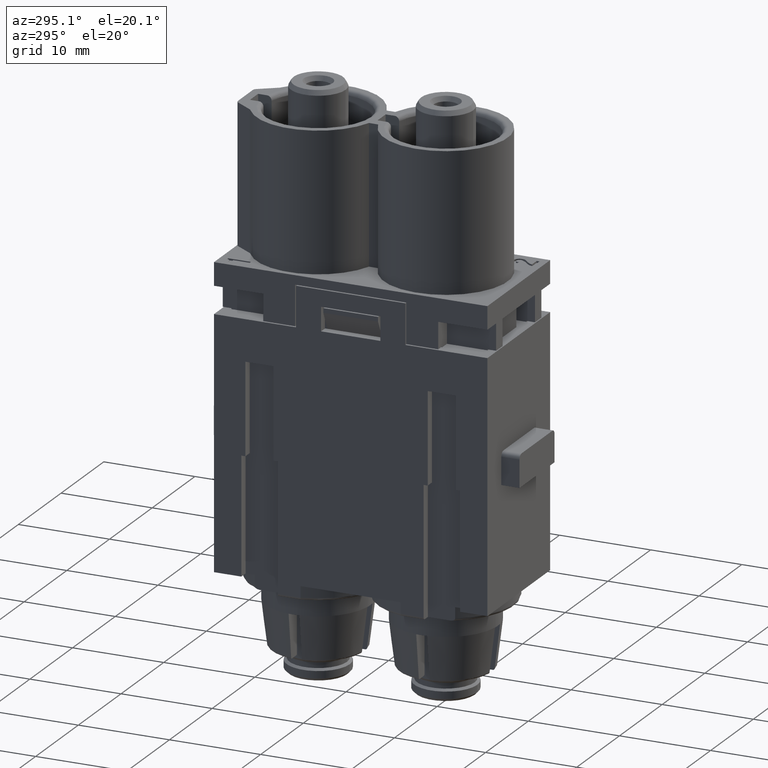
[diagram: clean part render]
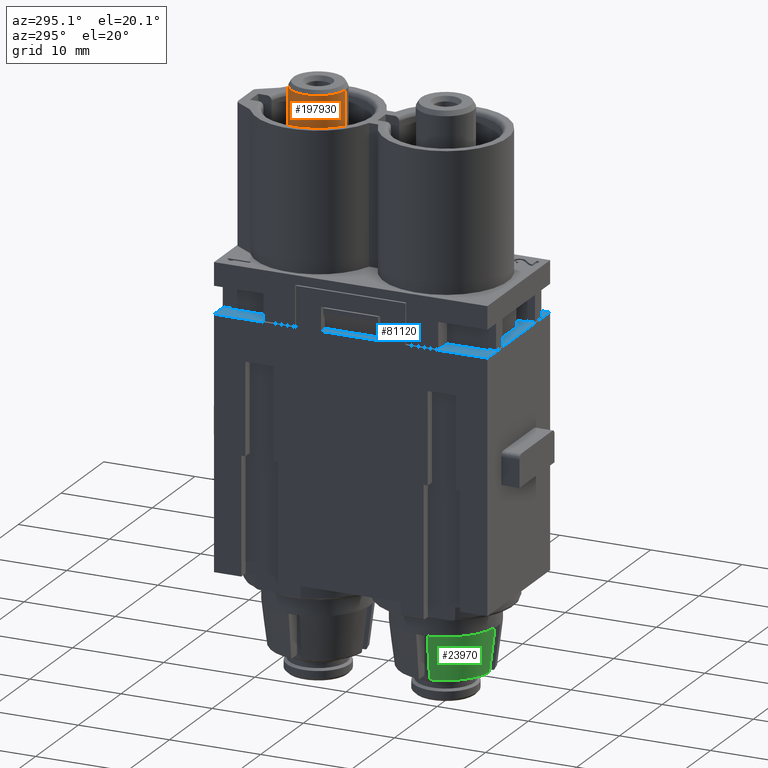
[diagram: same view with three faces highlighted in distinct colors, each labeled with its STEP entity id]
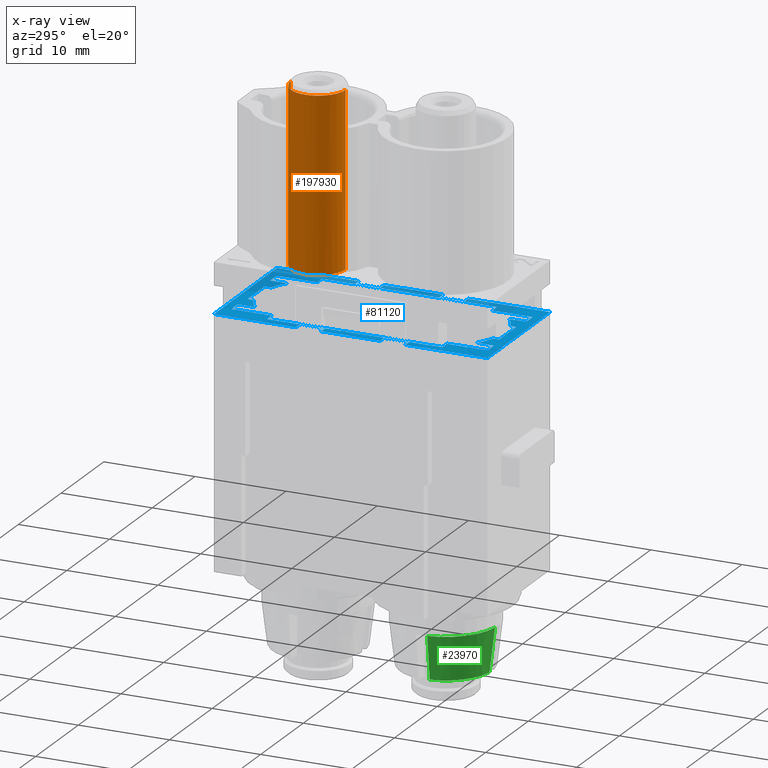
[diagram: x-ray of the same camera — body ghosted, the three highlighted faces saturated]
A machine part, auxiliary view with three faces highlighted in distinct colors.
The next image is the same camera in x-ray (body ghosted, the three faces saturated) — at least one of them is partly hidden behind the body in this view.
Their STEP definitions:

[orange] entity #197930 — the highlighted cylindrical surface (edge-blend (fillet) strip) has radius 3 mm, axis along (0, -0, -1).
#76360=CARTESIAN_POINT('',(66.6468229999995,73.9545149999995,
-16.2999999999997));
#76370=DIRECTION('',(2.58844984525645E-31,-9.86076131526265E-32,-1.));
#76380=DIRECTION('',(2.42232056741089E-44,1.,-9.86076131526265E-32));
#76390=AXIS2_PLACEMENT_3D('',#76360,#76370,#76380);
#76400=CIRCLE('',#76390,3.00000000000001);
#76410=CARTESIAN_POINT('',(66.6468229999995,76.9545149999995,
-16.2999999999997));
#76420=VERTEX_POINT('',#76410);
#76430=CARTESIAN_POINT('',(66.6468229999995,70.9545149999995,
-16.2999999999997));
#76440=VERTEX_POINT('',#76430);
#76470=CARTESIAN_POINT('',(63.6468229999992,73.9545149999996,
-16.2999999999998));
#76480=VERTEX_POINT('',#76470);
#76490=EDGE_CURVE('',#76480,#76420,#76400,.T.);
#76510=EDGE_CURVE('',#76440,#76480,#76400,.T.);
#158440=CARTESIAN_POINT('',(66.6468229999995,76.9545149999995,
2.70000000000028));
#158450=VERTEX_POINT('',#158440);
#158480=CARTESIAN_POINT('',(66.6468229999995,73.9545149999995,
2.70000000000028));
#158490=DIRECTION('',(2.58844984525645E-31,-9.86076131526265E-32,-1.));
#158500=DIRECTION('',(2.37310171513627E-15,-1.,2.95822839457879E-31));
#158510=AXIS2_PLACEMENT_3D('',#158480,#158490,#158500);
#158520=CIRCLE('',#158510,3.);
#158530=CARTESIAN_POINT('',(66.6468229999995,70.9545149999995,
2.70000000000027));
#158540=VERTEX_POINT('',#158530);
#159390=CARTESIAN_POINT('',(66.6468229999995,76.9545149999995,
-8.19999999999974));
#159400=DIRECTION('',(2.58844984525645E-31,-9.86076131526265E-32,-1.));
#159410=VECTOR('',#159400,1.);
#159420=LINE('',#159390,#159410);
#159430=EDGE_CURVE('',#158450,#76420,#159420,.T.);
#159460=CARTESIAN_POINT('',(66.6468229999995,70.9545149999995,
-8.19999999999974));
#159470=DIRECTION('',(2.58844984525645E-31,-9.86076131526265E-32,-1.));
#159480=VECTOR('',#159470,1.);
#159490=LINE('',#159460,#159480);
#159500=EDGE_CURVE('',#158540,#76440,#159490,.T.);
#195130=EDGE_CURVE('',#158540,#158450,#158520,.T.);
#197810=CARTESIAN_POINT('',(66.6468229999995,73.9545149999995,
-8.19999999999974));
#197820=DIRECTION('',(2.58844984525645E-31,-9.86076131526265E-32,-1.));
#197830=DIRECTION('',(2.42232056741089E-44,1.,-2.95822839457879E-31));
#197840=AXIS2_PLACEMENT_3D('',#197810,#197820,#197830);
#197850=CYLINDRICAL_SURFACE('',#197840,3.00000000000001);
#197860=ORIENTED_EDGE('',*,*,#76490,.F.);
#197870=ORIENTED_EDGE('',*,*,#159430,.T.);
#197880=ORIENTED_EDGE('',*,*,#195130,.T.);
#197890=ORIENTED_EDGE('',*,*,#159500,.F.);
#197900=ORIENTED_EDGE('',*,*,#76510,.F.);
#197910=EDGE_LOOP('',(#197900,#197890,#197880,#197870,#197860));
#197920=FACE_OUTER_BOUND('',#197910,.T.);
#197930=ADVANCED_FACE('',(#197920),#197850,.T.);

[blue] entity #81120 — the highlighted planar face has unit normal (0, -0, 1).
#2270=CARTESIAN_POINT('',(73.9968229999995,60.9545149999999,
-20.2999999999993));
#2280=VERTEX_POINT('',#2270);
#2430=CARTESIAN_POINT('',(73.9968229999995,72.9545149999989,
-20.2999999999991));
#2440=VERTEX_POINT('',#2430);
#2470=CARTESIAN_POINT('',(73.9968229999995,56.6045150000001,
-20.2999999999991));
#2480=DIRECTION('',(-1.19020386466133E-15,-1.,-7.00114053383648E-30));
#2490=VECTOR('',#2480,1.);
#2500=LINE('',#2470,#2490);
#2510=CARTESIAN_POINT('',(73.9968229999995,81.9545149999989,
-20.2999999999989));
#2520=VERTEX_POINT('',#2510);
#2530=EDGE_CURVE('',#2520,#2440,#2500,.T.);
#3310=CARTESIAN_POINT('',(73.9968229999995,51.9545149999989,
-20.2999999999995));
#3320=VERTEX_POINT('',#3310);
#3350=CARTESIAN_POINT('',(73.9968229999995,56.6045150000001,
-20.2999999999994));
#3360=DIRECTION('',(1.19020386466122E-15,1.,1.74489636972507E-14));
#3370=VECTOR('',#3360,1.);
#3380=LINE('',#3350,#3370);
#3390=EDGE_CURVE('',#3320,#2280,#3380,.T.);
#4590=CARTESIAN_POINT('',(73.9968229999995,63.7045149999989,
-20.2999999999992));
#4600=VERTEX_POINT('',#4590);
#4630=CARTESIAN_POINT('',(73.9968229999997,77.3045149999992,
-20.299999999999));
#4640=DIRECTION('',(1.98897677757607E-16,-1.,-1.74489636972507E-14));
#4650=VECTOR('',#4640,1.);
#4660=LINE('',#4630,#4650);
#4670=CARTESIAN_POINT('',(73.9968229999995,70.2045149999989,
-20.2999999999991));
#4680=VERTEX_POINT('',#4670);
#4690=EDGE_CURVE('',#4680,#4600,#4660,.T.);
#6500=CARTESIAN_POINT('',(73.0468229999997,69.9545149999994,
-20.2999999999991));
#6510=VERTEX_POINT('',#6500);
#7840=CARTESIAN_POINT('',(73.0468229999997,63.9545149999994,
-20.2999999999992));
#7850=VERTEX_POINT('',#7840);
#8330=CARTESIAN_POINT('',(61.346823,81.0045149999989,-20.2999999999989))
;
#8340=VERTEX_POINT('',#8330);
#8650=CARTESIAN_POINT('',(61.346823,76.5545149999994,-20.299999999999));
#8660=VERTEX_POINT('',#8650);
#8690=CARTESIAN_POINT('',(61.346823,56.6045150000001,-20.2999999999994))
;
#8700=DIRECTION('',(-2.42232056741089E-44,-1.,-1.74489636972507E-14));
#8710=VECTOR('',#8700,1.);
#8720=LINE('',#8690,#8710);
#8730=EDGE_CURVE('',#8340,#8660,#8720,.T.);
#11640=CARTESIAN_POINT('',(59.2968229999997,56.6045150000001,
-20.2999999999994));
#11650=DIRECTION('',(1.98897677757613E-16,-1.,1.18329135783152E-30));
#11660=VECTOR('',#11650,1.);
#11670=LINE('',#11640,#11660);
#11680=CARTESIAN_POINT('',(59.2968229999997,60.9545149999989,
-20.2999999999993));
#11690=VERTEX_POINT('',#11680);
#11700=CARTESIAN_POINT('',(59.2968229999997,51.9545149999989,
-20.2999999999994));
#11710=VERTEX_POINT('',#11700);
#11720=EDGE_CURVE('',#11690,#11710,#11670,.T.);
#13540=CARTESIAN_POINT('',(59.2968229999996,81.9545149999989,
-20.2999999999989));
#13550=VERTEX_POINT('',#13540);
#13580=CARTESIAN_POINT('',(59.2968229999997,56.6045150000001,
-20.2999999999992));
#13590=DIRECTION('',(1.98897677757613E-16,-1.,1.18329135783152E-30));
#13600=VECTOR('',#13590,1.);
#13610=LINE('',#13580,#13600);
#13620=CARTESIAN_POINT('',(59.2968229999997,72.9545149999989,
-20.2999999999991));
#13630=VERTEX_POINT('',#13620);
#13640=EDGE_CURVE('',#13550,#13630,#13610,.T.);
#13950=CARTESIAN_POINT('',(59.2968229999996,70.2045149999989,
-20.2999999999991));
#13960=VERTEX_POINT('',#13950);
#13990=CARTESIAN_POINT('',(59.2968229999996,77.3045149999992,
-20.299999999999));
#14000=DIRECTION('',(-1.98897677757607E-16,1.,1.74489636972507E-14));
#14010=VECTOR('',#14000,1.);
#14020=LINE('',#13990,#14010);
#14030=CARTESIAN_POINT('',(59.2968229999997,63.7045149999989,
-20.2999999999992));
#14040=VERTEX_POINT('',#14030);
#14050=EDGE_CURVE('',#14040,#13960,#14020,.T.);
#18350=CARTESIAN_POINT('',(62.8468229999991,56.6045150000001,
-20.2999999999994));
#18360=DIRECTION('',(1.57772181044205E-30,1.,1.74489636972507E-14));
#18370=VECTOR('',#18360,1.);
#18380=LINE('',#18350,#18370);
#18390=CARTESIAN_POINT('',(62.8468229999991,79.1433052423885,
-20.3000000000001));
#18400=VERTEX_POINT('',#18390);
#18410=CARTESIAN_POINT('',(62.8468229999991,81.0045149999989,
-20.299999999999));
#18420=VERTEX_POINT('',#18410);
#18430=EDGE_CURVE('',#18400,#18420,#18380,.T.);
#22170=CARTESIAN_POINT('',(61.346823,52.9045149999989,-20.2999999999994)
);
#22180=VERTEX_POINT('',#22170);
#22210=CARTESIAN_POINT('',(61.346823,56.6045150000001,-20.2999999999994)
);
#22220=DIRECTION('',(-2.42232056741089E-44,-1.,-1.74489636972507E-14));
#22230=VECTOR('',#22220,1.);
#22240=LINE('',#22210,#22230);
#22250=CARTESIAN_POINT('',(61.346823,57.3545149999994,-20.2999999999994)
);
#22260=VERTEX_POINT('',#22250);
#22270=EDGE_CURVE('',#22260,#22180,#22240,.T.);
#24180=CARTESIAN_POINT('',(72.446823,81.9545149999989,-20.2999999999989)
);
#24190=DIRECTION('',(-1.,9.73145882576852E-16,9.86076131526265E-32));
#24200=VECTOR('',#24190,1.);
#24210=LINE('',#24180,#24200);
#24220=EDGE_CURVE('',#2520,#13550,#24210,.T.);
#29230=CARTESIAN_POINT('',(72.446823,76.5545149999994,-20.299999999999))
;
#29240=DIRECTION('',(-1.,-1.21150368566528E-15,2.22044604924997E-16));
#29250=VECTOR('',#29240,1.);
#29260=LINE('',#29230,#29250);
#29270=CARTESIAN_POINT('',(73.0468229999996,76.5545149999994,
-20.2999999999991));
#29280=VERTEX_POINT('',#29270);
#29290=CARTESIAN_POINT('',(71.946823,76.5545149999994,-20.299999999999))
;
#29300=VERTEX_POINT('',#29290);
#29310=EDGE_CURVE('',#29280,#29300,#29260,.T.);
#30330=CARTESIAN_POINT('',(71.946823,56.6045150000001,-20.2999999999994)
);
#30340=DIRECTION('',(3.67394039744205E-16,1.,1.74489636972507E-14));
#30350=VECTOR('',#30340,1.);
#30360=LINE('',#30330,#30350);
#30370=CARTESIAN_POINT('',(71.946823,52.9045149999989,-20.2999999999994)
);
#30380=VERTEX_POINT('',#30370);
#30390=CARTESIAN_POINT('',(71.946823,57.3545149999994,-20.2999999999994)
);
#30400=VERTEX_POINT('',#30390);
#30410=EDGE_CURVE('',#30380,#30400,#30360,.T.);
#35720=CARTESIAN_POINT('',(60.2468229999994,69.9545149999994,
-20.2999999999991));
#35730=VERTEX_POINT('',#35720);
#39700=CARTESIAN_POINT('',(60.2468229999995,63.9545149999993,
-20.2999999999992));
#39710=VERTEX_POINT('',#39700);
#60920=CARTESIAN_POINT('',(72.446823,57.3545149999994,-20.2999999999994)
);
#60930=DIRECTION('',(1.,6.05751842832639E-16,-2.22044604925008E-16));
#60940=VECTOR('',#60930,1.);
#60950=LINE('',#60920,#60940);
#60960=CARTESIAN_POINT('',(60.2468229999996,57.3545149999994,
-20.2999999999994));
#60970=VERTEX_POINT('',#60960);
#60980=EDGE_CURVE('',#60970,#22260,#60950,.T.);
#62090=CARTESIAN_POINT('',(70.4468229999991,81.0045149999989,
-20.2999999999989));
#62100=VERTEX_POINT('',#62090);
#62430=CARTESIAN_POINT('',(70.4468229999991,79.1433052423891,
-20.2999999999999));
#62440=VERTEX_POINT('',#62430);
#62470=CARTESIAN_POINT('',(70.4468229999991,56.6045150000001,
-20.2999999999994));
#62480=DIRECTION('',(-1.57772181044205E-30,-1.,-1.74489636972507E-14));
#62490=VECTOR('',#62480,1.);
#62500=LINE('',#62470,#62490);
#62510=EDGE_CURVE('',#62100,#62440,#62500,.T.);
#67700=CARTESIAN_POINT('',(73.0468229999996,57.3545149999994,
-20.2999999999993));
#67710=VERTEX_POINT('',#67700);
#67740=CARTESIAN_POINT('',(72.446823,57.3545149999994,-20.2999999999994)
);
#67750=DIRECTION('',(1.,1.21150368566528E-15,-2.22044604924997E-16));
#67760=VECTOR('',#67750,1.);
#67770=LINE('',#67740,#67760);
#67780=EDGE_CURVE('',#30400,#67710,#67770,.T.);
#69400=CARTESIAN_POINT('',(73.0468229999996,56.6045150000001,
-20.2999999999994));
#69410=DIRECTION('',(9.09428748338268E-15,1.,1.74489636972507E-14));
#69420=VECTOR('',#69410,1.);
#69430=LINE('',#69400,#69420);
#69440=EDGE_CURVE('',#7850,#6510,#69430,.T.);
#70650=CARTESIAN_POINT('',(73.0468229999996,76.5545149999994,
-20.2999999999991));
#70660=DIRECTION('',(-1.19020386466133E-15,-1.,-6.97648863054832E-30));
#70670=VECTOR('',#70660,1.);
#70680=LINE('',#70650,#70670);
#70690=EDGE_CURVE('',#29280,#6510,#70680,.T.);
#70740=CARTESIAN_POINT('',(73.0468229999995,56.6045150000001,
-20.2999999999994));
#70750=DIRECTION('',(-2.42232056741089E-44,-1.,-1.74489636972507E-14));
#70760=VECTOR('',#70750,1.);
#70770=LINE('',#70740,#70760);
#70780=EDGE_CURVE('',#7850,#67710,#70770,.T.);
#71700=CARTESIAN_POINT('',(60.2468229999996,56.6045150000001,
-20.2999999999994));
#71710=DIRECTION('',(1.14268350554931E-14,-1.,-1.74489636972507E-14));
#71720=VECTOR('',#71710,1.);
#71730=LINE('',#71700,#71720);
#71740=EDGE_CURVE('',#35730,#39710,#71730,.T.);
#78560=CARTESIAN_POINT('',(73.5436232275759,79.2545149999992,
-20.299999999999));
#78570=DIRECTION('',(2.22044604925018E-16,-1.74489636972507E-14,1.));
#78580=DIRECTION('',(1.,0.,-2.22044604925018E-16));
#78590=AXIS2_PLACEMENT_3D('',#78560,#78570,#78580);
#78600=PLANE('',#78590);
#78610=ORIENTED_EDGE('',*,*,#2530,.F.);
#78620=CARTESIAN_POINT('',(72.446823,72.9545149999989,-20.2999999999991)
);
#78630=DIRECTION('',(-1.,1.19020386466133E-15,2.22044604925039E-16));
#78640=VECTOR('',#78630,1.);
#78650=LINE('',#78620,#78640);
#78660=CARTESIAN_POINT('',(73.0904234551523,72.9545149999989,
-20.2999999999992));
#78670=VERTEX_POINT('',#78660);
#78680=EDGE_CURVE('',#2440,#78670,#78650,.T.);
#78690=ORIENTED_EDGE('',*,*,#78680,.F.);
#78700=CARTESIAN_POINT('',(73.0904234551523,56.6045150000001,
-20.2999999999994));
#78710=DIRECTION('',(-6.05945613331839E-16,-1.,-1.74489636972507E-14));
#78720=VECTOR('',#78710,1.);
#78730=LINE('',#78700,#78720);
#78740=CARTESIAN_POINT('',(73.0904234551523,70.2045149999989,
-20.2999999999991));
#78750=VERTEX_POINT('',#78740);
#78760=EDGE_CURVE('',#78670,#78750,#78730,.T.);
#78770=ORIENTED_EDGE('',*,*,#78760,.F.);
#78780=CARTESIAN_POINT('',(60.8468229999989,70.2045149999989,
-20.2999999999991));
#78790=DIRECTION('',(1.,-6.05751842832642E-16,-2.22044604925029E-16));
#78800=VECTOR('',#78790,1.);
#78810=LINE('',#78780,#78800);
#78820=EDGE_CURVE('',#78750,#4680,#78810,.T.);
#78830=ORIENTED_EDGE('',*,*,#78820,.F.);
#78840=ORIENTED_EDGE('',*,*,#4690,.F.);
#78850=CARTESIAN_POINT('',(60.8468229999989,63.7045149999989,
-20.2999999999992));
#78860=DIRECTION('',(-1.,6.05751842832642E-16,2.22044604925029E-16));
#78870=VECTOR('',#78860,1.);
#78880=LINE('',#78850,#78870);
#78890=CARTESIAN_POINT('',(73.0904234551523,63.7045149999989,
-20.2999999999992));
#78900=VERTEX_POINT('',#78890);
#78910=EDGE_CURVE('',#4600,#78900,#78880,.T.);
#78920=ORIENTED_EDGE('',*,*,#78910,.F.);
#78930=CARTESIAN_POINT('',(73.0904234551523,60.9545149999999,
-20.2999999999993));
#78940=VERTEX_POINT('',#78930);
#78950=EDGE_CURVE('',#78900,#78940,#78730,.T.);
#78960=ORIENTED_EDGE('',*,*,#78950,.F.);
#78970=CARTESIAN_POINT('',(72.446823,60.9545149999999,-20.2999999999993)
);
#78980=DIRECTION('',(-1.,1.98897677757508E-16,-5.87502177453421E-15));
#78990=VECTOR('',#78980,1.);
#79000=LINE('',#78970,#78990);
#79010=EDGE_CURVE('',#2280,#78940,#79000,.T.);
#79020=ORIENTED_EDGE('',*,*,#79010,.T.);
#79030=ORIENTED_EDGE('',*,*,#3390,.T.);
#79040=CARTESIAN_POINT('',(72.446823,51.9545149999989,-20.2999999999995)
);
#79050=DIRECTION('',(-1.,9.73145882576852E-16,9.86076131526265E-32));
#79060=VECTOR('',#79050,1.);
#79070=LINE('',#79040,#79060);
#79080=EDGE_CURVE('',#3320,#11710,#79070,.T.);
#79090=ORIENTED_EDGE('',*,*,#79080,.F.);
#79100=ORIENTED_EDGE('',*,*,#11720,.T.);
#79110=CARTESIAN_POINT('',(72.446823,60.9545149999989,-20.2999999999993)
);
#79120=DIRECTION('',(1.,-9.73145882576954E-16,5.87502177453421E-15));
#79130=VECTOR('',#79120,1.);
#79140=LINE('',#79110,#79130);
#79150=CARTESIAN_POINT('',(60.203222544847,60.9545149999999,
-20.2999999999994));
#79160=VERTEX_POINT('',#79150);
#79170=EDGE_CURVE('',#11690,#79160,#79140,.T.);
#79180=ORIENTED_EDGE('',*,*,#79170,.F.);
#79190=CARTESIAN_POINT('',(60.203222544847,56.6045150000001,
-20.2999999999994));
#79200=DIRECTION('',(-1.93770499197402E-19,1.,1.74489636972507E-14));
#79210=VECTOR('',#79200,1.);
#79220=LINE('',#79190,#79210);
#79230=CARTESIAN_POINT('',(60.203222544847,63.7045149999989,
-20.2999999999992));
#79240=VERTEX_POINT('',#79230);
#79250=EDGE_CURVE('',#79160,#79240,#79220,.T.);
#79260=ORIENTED_EDGE('',*,*,#79250,.F.);
#79270=CARTESIAN_POINT('',(60.8468229999989,63.7045149999989,
-20.2999999999992));
#79280=DIRECTION('',(1.,1.1632769413005E-30,-2.22044604925019E-16));
#79290=VECTOR('',#79280,1.);
#79300=LINE('',#79270,#79290);
#79310=EDGE_CURVE('',#14040,#79240,#79300,.T.);
#79320=ORIENTED_EDGE('',*,*,#79310,.T.);
#79330=ORIENTED_EDGE('',*,*,#14050,.F.);
#79340=CARTESIAN_POINT('',(60.8468229999989,70.2045149999989,
-20.2999999999991));
#79350=DIRECTION('',(-1.,-1.1632769413005E-30,2.22044604925019E-16));
#79360=VECTOR('',#79350,1.);
#79370=LINE('',#79340,#79360);
#79380=CARTESIAN_POINT('',(60.203222544847,70.2045149999989,
-20.2999999999991));
#79390=VERTEX_POINT('',#79380);
#79400=EDGE_CURVE('',#79390,#13960,#79370,.T.);
#79410=ORIENTED_EDGE('',*,*,#79400,.T.);
#79420=CARTESIAN_POINT('',(60.203222544847,72.9545149999989,
-20.2999999999991));
#79430=VERTEX_POINT('',#79420);
#79440=EDGE_CURVE('',#79390,#79430,#79220,.T.);
#79450=ORIENTED_EDGE('',*,*,#79440,.F.);
#79460=CARTESIAN_POINT('',(72.446823,72.9545149999989,-20.2999999999991)
);
#79470=DIRECTION('',(1.,-1.19020386466133E-15,-2.22044604925039E-16));
#79480=VECTOR('',#79470,1.);
#79490=LINE('',#79460,#79480);
#79500=EDGE_CURVE('',#13630,#79430,#79490,.T.);
#79510=ORIENTED_EDGE('',*,*,#79500,.T.);
#79520=ORIENTED_EDGE('',*,*,#13640,.T.);
#79530=ORIENTED_EDGE('',*,*,#24220,.T.);
#79540=EDGE_LOOP('',(#79530,#79520,#79510,#79450,#79410,#79330,#79320,
#79260,#79180,#79100,#79090,#79030,#79020,#78960,#78920,#78840,#78830,
#78770,#78690,#78610));
#79550=FACE_OUTER_BOUND('',#79540,.T.);
#79560=ORIENTED_EDGE('',*,*,#8730,.F.);
#79570=CARTESIAN_POINT('',(72.446823,76.5545149999994,-20.299999999999))
;
#79580=DIRECTION('',(-1.,-6.05751842832639E-16,2.22044604925008E-16));
#79590=VECTOR('',#79580,1.);
#79600=LINE('',#79570,#79590);
#79610=CARTESIAN_POINT('',(60.2468229999996,76.5545149999994,
-20.299999999999));
#79620=VERTEX_POINT('',#79610);
#79630=EDGE_CURVE('',#8660,#79620,#79600,.T.);
#79640=ORIENTED_EDGE('',*,*,#79630,.F.);
#79650=CARTESIAN_POINT('',(60.2468229999996,76.5545149999994,
-20.2999999999992));
#79660=DIRECTION('',(-1.19020386466133E-15,-1.,-6.97648863054832E-30));
#79670=VECTOR('',#79660,1.);
#79680=LINE('',#79650,#79670);
#79690=EDGE_CURVE('',#79620,#35730,#79680,.T.);
#79700=ORIENTED_EDGE('',*,*,#79690,.F.);
#79710=ORIENTED_EDGE('',*,*,#71740,.F.);
#79720=CARTESIAN_POINT('',(60.2468229999995,56.6045150000001,
-20.2999999999994));
#79730=DIRECTION('',(4.89858719658941E-16,1.,1.74489636972507E-14));
#79740=VECTOR('',#79730,1.);
#79750=LINE('',#79720,#79740);
#79760=EDGE_CURVE('',#60970,#39710,#79750,.T.);
#79770=ORIENTED_EDGE('',*,*,#79760,.T.);
#79780=ORIENTED_EDGE('',*,*,#60980,.F.);
#79790=ORIENTED_EDGE('',*,*,#22270,.F.);
#79800=CARTESIAN_POINT('',(62.8468229999991,52.9045149999989,
-20.2999999999994));
#79810=DIRECTION('',(-1.,9.73145882576852E-16,0.));
#79820=VECTOR('',#79810,1.);
#79830=LINE('',#79800,#79820);
#79840=CARTESIAN_POINT('',(62.8468229999991,52.9045149999989,
-20.2999999999994));
#79850=VERTEX_POINT('',#79840);
#79860=EDGE_CURVE('',#79850,#22180,#79830,.T.);
#79870=ORIENTED_EDGE('',*,*,#79860,.T.);
#79880=CARTESIAN_POINT('',(62.8468229999991,56.6045150000001,
-20.2999999999994));
#79890=DIRECTION('',(1.57772181044205E-30,1.,1.74489636972507E-14));
#79900=VECTOR('',#79890,1.);
#79910=LINE('',#79880,#79900);
#79920=CARTESIAN_POINT('',(62.8468229999991,54.7657247576112,-20.3));
#79930=VERTEX_POINT('',#79920);
#79940=EDGE_CURVE('',#79850,#79930,#79910,.T.);
#79950=ORIENTED_EDGE('',*,*,#79940,.F.);
#79960=CARTESIAN_POINT('',(66.6468229999997,59.9545149999993,
-20.2999999999994));
#79970=DIRECTION('',(8.30018314970004E-17,-7.52875436284556E-15,1.));
#79980=DIRECTION('',(-1.76419815706921E-35,-1.,-7.52875436284556E-15));
#79990=AXIS2_PLACEMENT_3D('',#79960,#79970,#79980);
#80000=CIRCLE('',#79990,6.43144961727182);
#80010=CARTESIAN_POINT('',(64.6468230000013,53.8419423681598,
-20.2999999999995));
#80020=VERTEX_POINT('',#80010);
#80030=EDGE_CURVE('',#79930,#80020,#80000,.T.);
#80040=ORIENTED_EDGE('',*,*,#80030,.F.);
#80050=CARTESIAN_POINT('',(64.6468229999991,56.6045150000001,
-20.2999999999994));
#80060=DIRECTION('',(-7.89219875478744E-16,-1.,-1.74489636972507E-14));
#80070=VECTOR('',#80060,1.);
#80080=LINE('',#80050,#80070);
#80090=CARTESIAN_POINT('',(64.6468229999991,53.1545149999994,
-20.2999999999994));
#80100=VERTEX_POINT('',#80090);
#80110=EDGE_CURVE('',#80020,#80100,#80080,.T.);
#80120=ORIENTED_EDGE('',*,*,#80110,.F.);
#80130=CARTESIAN_POINT('',(72.446823,53.1545149999994,-20.2999999999994)
);
#80140=DIRECTION('',(-1.,-1.19784378117209E-16,2.22044604925016E-16));
#80150=VECTOR('',#80140,1.);
#80160=LINE('',#80130,#80150);
#80170=CARTESIAN_POINT('',(68.6468229999991,53.1545149999994,
-20.2999999999994));
#80180=VERTEX_POINT('',#80170);
#80190=EDGE_CURVE('',#80180,#80100,#80160,.T.);
#80200=ORIENTED_EDGE('',*,*,#80190,.T.);
#80210=CARTESIAN_POINT('',(68.6468229999991,56.6045150000001,
-20.2999999999994));
#80220=DIRECTION('',(1.57772181044205E-30,1.,1.74489636972507E-14));
#80230=VECTOR('',#80220,1.);
#80240=LINE('',#80210,#80230);
#80250=CARTESIAN_POINT('',(68.6468229999991,53.8419423681602,
-20.2999999999995));
#80260=VERTEX_POINT('',#80250);
#80270=EDGE_CURVE('',#80180,#80260,#80240,.T.);
#80280=ORIENTED_EDGE('',*,*,#80270,.F.);
#80290=CARTESIAN_POINT('',(70.446823,54.765724757611,-20.3));
#80300=VERTEX_POINT('',#80290);
#80310=EDGE_CURVE('',#80260,#80300,#80000,.T.);
#80320=ORIENTED_EDGE('',*,*,#80310,.F.);
#80330=CARTESIAN_POINT('',(70.446823,56.6045150000001,-20.2999999999994)
);
#80340=DIRECTION('',(1.21150368566528E-15,-1.,-1.74489636972507E-14));
#80350=VECTOR('',#80340,1.);
#80360=LINE('',#80330,#80350);
#80370=CARTESIAN_POINT('',(70.446823,52.9045149999989,-20.2999999999994)
);
#80380=VERTEX_POINT('',#80370);
#80390=EDGE_CURVE('',#80300,#80380,#80360,.T.);
#80400=ORIENTED_EDGE('',*,*,#80390,.F.);
#80410=CARTESIAN_POINT('',(71.946823,52.9045149999989,-20.2999999999994)
);
#80420=DIRECTION('',(-1.,9.73145882576852E-16,0.));
#80430=VECTOR('',#80420,1.);
#80440=LINE('',#80410,#80430);
#80450=EDGE_CURVE('',#30380,#80380,#80440,.T.);
#80460=ORIENTED_EDGE('',*,*,#80450,.T.);
#80470=ORIENTED_EDGE('',*,*,#30410,.F.);
#80480=ORIENTED_EDGE('',*,*,#67780,.F.);
#80490=ORIENTED_EDGE('',*,*,#70780,.T.);
#80500=ORIENTED_EDGE('',*,*,#69440,.F.);
#80510=ORIENTED_EDGE('',*,*,#70690,.T.);
#80520=ORIENTED_EDGE('',*,*,#29310,.F.);
#80530=CARTESIAN_POINT('',(71.946823,56.6045150000001,-20.2999999999994)
);
#80540=DIRECTION('',(3.67394039744205E-16,1.,1.74489636972507E-14));
#80550=VECTOR('',#80540,1.);
#80560=LINE('',#80530,#80550);
#80570=CARTESIAN_POINT('',(71.946823,81.0045149999989,-20.299999999999))
;
#80580=VERTEX_POINT('',#80570);
#80590=EDGE_CURVE('',#29300,#80580,#80560,.T.);
#80600=ORIENTED_EDGE('',*,*,#80590,.F.);
#80610=CARTESIAN_POINT('',(71.946823,81.0045149999989,-20.299999999999))
;
#80620=DIRECTION('',(-1.,9.73145882576852E-16,0.));
#80630=VECTOR('',#80620,1.);
#80640=LINE('',#80610,#80630);
#80650=EDGE_CURVE('',#80580,#62100,#80640,.T.);
#80660=ORIENTED_EDGE('',*,*,#80650,.F.);
#80670=ORIENTED_EDGE('',*,*,#62510,.F.);
#80680=CARTESIAN_POINT('',(66.6468229999995,73.9545150000001,
-20.299999999999));
#80690=DIRECTION('',(-3.02531716145187E-58,-1.248933440996E-14,1.));
#80700=DIRECTION('',(-2.42232056741089E-44,-1.,-1.248933440996E-14));
#80710=AXIS2_PLACEMENT_3D('',#80680,#80690,#80700);
#80720=CIRCLE('',#80710,6.43144961727201);
#80730=CARTESIAN_POINT('',(68.6468229999991,80.0670876318434,
-20.299999999999));
#80740=VERTEX_POINT('',#80730);
#80750=EDGE_CURVE('',#62440,#80740,#80720,.T.);
#80760=ORIENTED_EDGE('',*,*,#80750,.F.);
#80770=CARTESIAN_POINT('',(68.6468229999991,56.6045150000001,
-20.2999999999994));
#80780=DIRECTION('',(-2.44624043528281E-16,1.,1.74489636972507E-14));
#80790=VECTOR('',#80780,1.);
#80800=LINE('',#80770,#80790);
#80810=CARTESIAN_POINT('',(68.6468229999991,80.754514999999,
-20.2999999999989));
#80820=VERTEX_POINT('',#80810);
#80830=EDGE_CURVE('',#80740,#80820,#80800,.T.);
#80840=ORIENTED_EDGE('',*,*,#80830,.F.);
#80850=CARTESIAN_POINT('',(72.446823,80.754514999999,-20.2999999999989))
;
#80860=DIRECTION('',(1.,1.21150368566528E-15,-2.22044604924997E-16));
#80870=VECTOR('',#80860,1.);
#80880=LINE('',#80850,#80870);
#80890=CARTESIAN_POINT('',(64.6468229999991,80.754514999999,
-20.2999999999989));
#80900=VERTEX_POINT('',#80890);
#80910=EDGE_CURVE('',#80900,#80820,#80880,.T.);
#80920=ORIENTED_EDGE('',*,*,#80910,.T.);
#80930=CARTESIAN_POINT('',(64.6468229999991,56.6045150000001,
-20.2999999999994));
#80940=DIRECTION('',(6.05751842832638E-16,-1.,-1.74489636972507E-14));
#80950=VECTOR('',#80940,1.);
#80960=LINE('',#80930,#80950);
#80970=CARTESIAN_POINT('',(64.6468229999991,80.0670876318391,
-20.299999999999));
#80980=VERTEX_POINT('',#80970);
#80990=EDGE_CURVE('',#80900,#80980,#80960,.T.);
#81000=ORIENTED_EDGE('',*,*,#80990,.F.);
#81010=EDGE_CURVE('',#80980,#18400,#80720,.T.);
#81020=ORIENTED_EDGE('',*,*,#81010,.F.);
#81030=ORIENTED_EDGE('',*,*,#18430,.F.);
#81040=CARTESIAN_POINT('',(62.8468229999991,81.0045149999989,
-20.299999999999));
#81050=DIRECTION('',(-1.,9.73145882576852E-16,0.));
#81060=VECTOR('',#81050,1.);
#81070=LINE('',#81040,#81060);
#81080=EDGE_CURVE('',#18420,#8340,#81070,.T.);
#81090=ORIENTED_EDGE('',*,*,#81080,.F.);
#81100=EDGE_LOOP('',(#81090,#81030,#81020,#81000,#80920,#80840,#80760,
#80670,#80660,#80600,#80520,#80510,#80500,#80490,#80480,#80470,#80460,
#80400,#80320,#80280,#80200,#80120,#80040,#79950,#79870,#79790,#79780,
#79770,#79710,#79700,#79640,#79560));
#81110=FACE_BOUND('',#81100,.T.);
#81120=ADVANCED_FACE('',(#79550,#81110),#78600,.T.);

[green] entity #23970 — the highlighted conical surface has half-angle 7 deg.
#23210=CARTESIAN_POINT('',(66.6468229999995,59.9545149999995,
-51.3999999999999));
#23220=DIRECTION('',(0.,0.,1.));
#23230=DIRECTION('',(-2.42232056741089E-44,-1.,3.94430452610506E-31));
#23240=AXIS2_PLACEMENT_3D('',#23210,#23220,#23230);
#23250=CONICAL_SURFACE('',#23240,5.7,0.122173047639603);
#23260=CARTESIAN_POINT('',(66.0468229999995,59.3545149999995,
-56.5999999999999));
#23270=DIRECTION('',(1.,-2.42232056741089E-44,3.08148791101958E-31));
#23280=DIRECTION('',(2.42232056741089E-44,1.,-7.88860905221012E-31));
#23290=AXIS2_PLACEMENT_3D('',#23260,#23270,#23280);
#23300=PLANE('',#23290);
#23310=CARTESIAN_POINT('',(66.0468229999995,54.2861819116921,
-51.3999999999998));
#23320=CARTESIAN_POINT('',(66.0468229999995,54.3358213859849,
-51.8020350517907));
#23330=CARTESIAN_POINT('',(66.0468229999995,54.3854679731624,
-52.2040692375613));
#23340=CARTESIAN_POINT('',(66.0468229999995,54.4351222644033,
-52.6061024811539));
#23350=CARTESIAN_POINT('',(66.0468229999995,54.4847765556442,
-53.0081357247462));
#23360=CARTESIAN_POINT('',(66.0468229999995,54.534438550336,
-53.4101680262317));
#23370=CARTESIAN_POINT('',(66.0468229999995,54.5841089072999,
-53.8121993010882));
#23380=CARTESIAN_POINT('',(66.0468229999995,54.6337792642641,
-54.2142305759468));
#23390=CARTESIAN_POINT('',(66.0468229999995,54.6834579827779,
-54.6162608242621));
#23400=CARTESIAN_POINT('',(66.0468229999995,54.7331457992973,
-55.0182899519808));
#23410=CARTESIAN_POINT('',(66.0468229999995,54.7828336158173,
-55.4203190797036));
#23420=CARTESIAN_POINT('',(66.0468229999996,54.8325305294864,
-55.8223470869334));
#23430=CARTESIAN_POINT('',(66.0468229999996,54.8822373662154,
-56.224373868681));
#23440=B_SPLINE_CURVE_WITH_KNOTS('',3,(#23310,#23320,#23330,#23340,
#23350,#23360,#23370,#23380,#23390,#23400,#23410,#23420,#23430),
.UNSPECIFIED.,.F.,.F.,(4,3,3,3,4),(0.,1.21526378429211,2.43052772897065,
3.64579178649142,4.86105591189229),.UNSPECIFIED.);
#23450=SURFACE_CURVE('',#23440,(#23300,#23250),.CURVE_3D.);
#23460=CARTESIAN_POINT('',(66.0468229999995,54.2861819116921,-51.4));
#23470=VERTEX_POINT('',#23460);
#23480=CARTESIAN_POINT('',(66.0468229999995,54.8822373662154,
-56.224373868681));
#23490=VERTEX_POINT('',#23480);
#23500=EDGE_CURVE('',#23470,#23490,#23450,.T.);
#23510=ORIENTED_EDGE('',*,*,#23500,.F.);
#23520=CARTESIAN_POINT('',(66.6468229999995,59.9545149999995,
-56.224373868681));
#23530=DIRECTION('',(-2.77333911991762E-31,2.95822839457879E-31,1.));
#23540=DIRECTION('',(0.0903925656578916,-0.995906212488799,
3.94430452610506E-31));
#23550=AXIS2_PLACEMENT_3D('',#23520,#23530,#23540);
#23560=CIRCLE('',#23550,5.10764137290255);
#23570=CARTESIAN_POINT('',(61.5745453662147,59.3545149999995,
-56.2243738686742));
#23580=VERTEX_POINT('',#23570);
#23590=EDGE_CURVE('',#23580,#23490,#23560,.T.);
#23600=ORIENTED_EDGE('',*,*,#23590,.T.);
#23610=CARTESIAN_POINT('',(60.8968229999995,59.3545149999995,
-56.5999999999999));
#23620=DIRECTION('',(2.42232056741089E-44,1.,-9.86076131526265E-32));
#23630=DIRECTION('',(-1.,2.42232056741089E-44,-2.52682008703605E-31));
#23640=AXIS2_PLACEMENT_3D('',#23610,#23620,#23630);
#23650=PLANE('',#23640);
#23660=CARTESIAN_POINT('',(61.5745453662155,59.3545149999995,
-56.224373868681));
#23670=CARTESIAN_POINT('',(61.5496919478508,59.3545149999995,
-56.0233604778059));
#23680=CARTESIAN_POINT('',(61.5248410117593,59.3545149999995,
-55.8223467803769));
#23690=CARTESIAN_POINT('',(61.4999924516786,59.3545149999995,
-55.6213327898864));
#23700=CARTESIAN_POINT('',(61.4751438915979,59.3545149999995,
-55.4203187993963));
#23710=CARTESIAN_POINT('',(61.4502977075572,59.3545149999995,
-55.2193045158413));
#23720=CARTESIAN_POINT('',(61.4254537992974,59.3545149999995,
-55.0182899519808));
#23730=CARTESIAN_POINT('',(61.3757659827779,59.3545149999995,
-54.6162608242622));
#23740=CARTESIAN_POINT('',(61.3260872642642,59.3545149999995,
-54.2142305759468));
#23750=CARTESIAN_POINT('',(61.2764169073,59.3545149999995,
-53.8121993010882));
#23760=CARTESIAN_POINT('',(61.2267465503361,59.3545149999995,
-53.4101680262317));
#23770=CARTESIAN_POINT('',(61.1770845556442,59.3545149999995,
-53.0081357247463));
#23780=CARTESIAN_POINT('',(61.1274302644034,59.3545149999995,
-52.6061024811541));
#23790=CARTESIAN_POINT('',(61.0777759731625,59.3545149999995,
-52.2040692375614));
#23800=CARTESIAN_POINT('',(61.028129385985,59.3545149999995,
-51.8020350517909));
#23810=CARTESIAN_POINT('',(60.9784899116922,59.3545149999995,-51.4));
#23820=B_SPLINE_CURVE_WITH_KNOTS('',3,(#23660,#23670,#23680,#23690,
#23700,#23710,#23720,#23730,#23740,#23750,#23760,#23770,#23780,#23790,
#23800,#23810),.UNSPECIFIED.,.F.,.F.,(4,3,3,3,3,4),(0.,0.607632225111674
,1.21526435450579,2.43052841202345,3.64579244121661,4.86105622551004),
.UNSPECIFIED.);
#23830=SURFACE_CURVE('',#23820,(#23650,#23250),.CURVE_3D.);
#23840=CARTESIAN_POINT('',(60.9784899116922,59.3545149999995,
-51.3999999999999));
#23850=VERTEX_POINT('',#23840);
#23860=EDGE_CURVE('',#23580,#23850,#23830,.T.);
#23870=ORIENTED_EDGE('',*,*,#23860,.F.);
#23880=CARTESIAN_POINT('',(66.6468229999995,59.9545149999995,
-51.3999999999999));
#23890=DIRECTION('',(-2.58844984525645E-31,9.86076131526265E-32,1.));
#23900=DIRECTION('',(-2.42232056741089E-44,-1.,1.97215226305253E-31));
#23910=AXIS2_PLACEMENT_3D('',#23880,#23890,#23900);
#23920=CIRCLE('',#23910,5.7);
#23930=EDGE_CURVE('',#23850,#23470,#23920,.T.);
#23940=ORIENTED_EDGE('',*,*,#23930,.F.);
#23950=EDGE_LOOP('',(#23940,#23870,#23600,#23510));
#23960=FACE_OUTER_BOUND('',#23950,.T.);
#23970=ADVANCED_FACE('',(#23960),#23250,.T.);